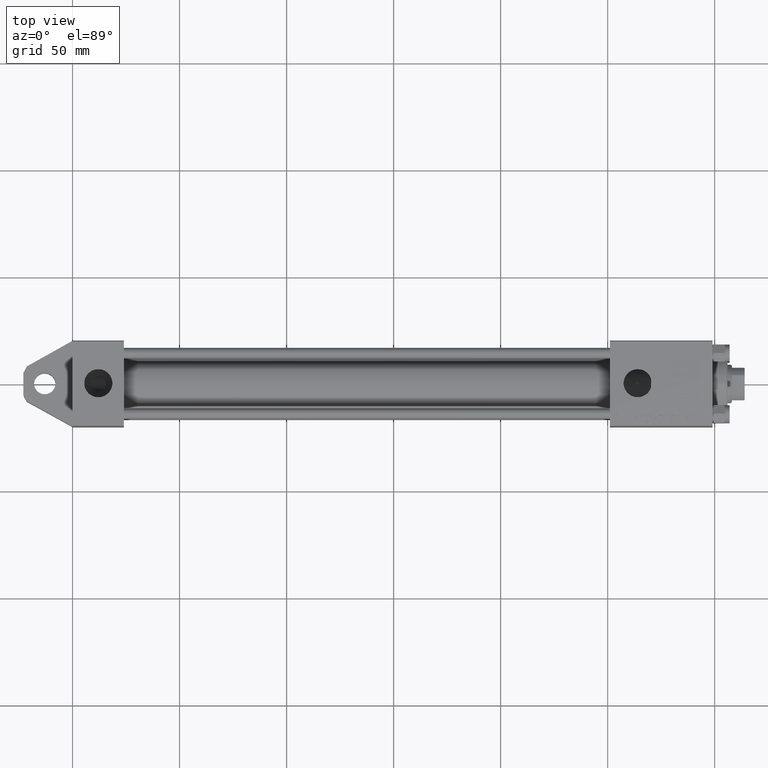
[diagram: clean part render]
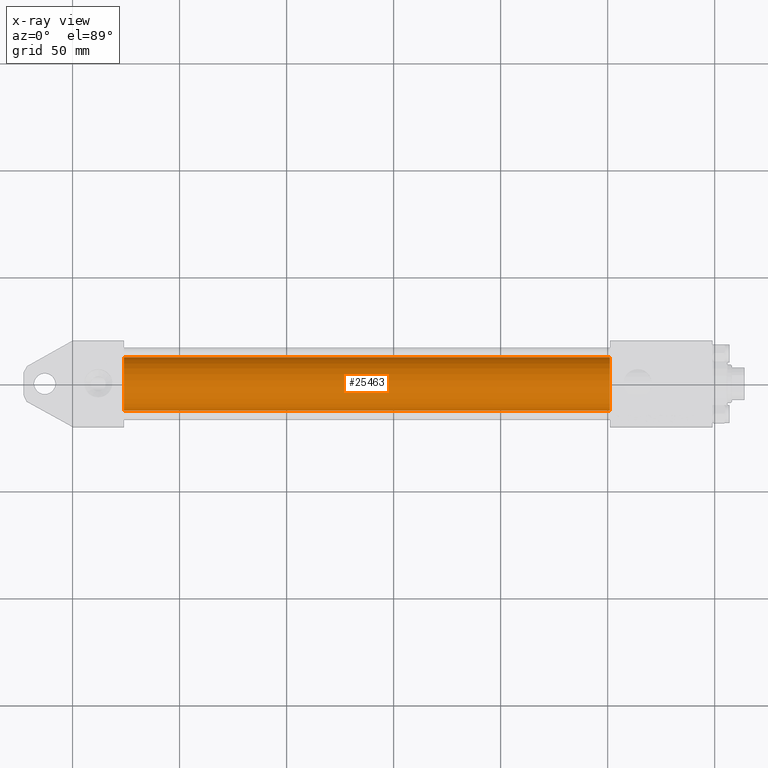
[diagram: x-ray — body ghosted, one internal face saturated and labeled with its STEP entity id]
A machine part, top view, then the same camera in x-ray: the body is ghosted and one INTERNAL B-rep face — a face not visible from any outside direction — is saturated and labeled: STEP entity #25463.
In plain terms, the highlighted cylindrical surface (edge-blend (fillet) strip) has radius 12.5 mm, axis along (-1, -0, 0).
Its self-contained STEP definition (entity closure, byte-faithful):
#334 = ORIENTED_EDGE ( 'NONE', *, *, #23275, .F. ) ;
#985 = VECTOR ( 'NONE', #36965, 1000.000000000000000 ) ;
#2325 = ORIENTED_EDGE ( 'NONE', *, *, #27669, .F. ) ;
#4249 = AXIS2_PLACEMENT_3D ( 'NONE', #28841, #18256, #5769 ) ;
#5262 = CARTESIAN_POINT ( 'NONE',  ( 24.00000000000000000, -3.469446951953614189E-15, 0.000000000000000000 ) ) ;
#5769 = DIRECTION ( 'NONE',  ( 0.000000000000000000, 0.000000000000000000, 1.000000000000000000 ) ) ;
#6728 = CYLINDRICAL_SURFACE ( 'NONE', #4249, 12.49999999999999645 ) ;
#8250 = DIRECTION ( 'NONE',  ( -1.000000000000000000, -0.000000000000000000, -0.000000000000000000 ) ) ;
#9006 = DIRECTION ( 'NONE',  ( 1.000000000000000000, 0.000000000000000000, 0.000000000000000000 ) ) ;
#9951 = EDGE_CURVE ( 'NONE', #17559, #40968, #35130, .T. ) ;
#11210 = EDGE_LOOP ( 'NONE', ( #25192, #28912, #2325, #334 ) ) ;
#14434 = VECTOR ( 'NONE', #8250, 1000.000000000000000 ) ;
#17559 = VERTEX_POINT ( 'NONE', #49349 ) ;
#18256 = DIRECTION ( 'NONE',  ( -1.000000000000000000, -0.000000000000000000, -0.000000000000000000 ) ) ;
#18649 = DIRECTION ( 'NONE',  ( 0.000000000000000000, 0.000000000000000000, -1.000000000000000000 ) ) ;
#19511 = CIRCLE ( 'NONE', #32365, 12.49999999999999645 ) ;
#23275 = EDGE_CURVE ( 'NONE', #17559, #31475, #43750, .T. ) ;
#25192 = ORIENTED_EDGE ( 'NONE', *, *, #9951, .T. ) ;
#25463 = ADVANCED_FACE ( 'NONE', ( #37359 ), #6728, .F. ) ;
#26437 = CARTESIAN_POINT ( 'NONE',  ( 251.0000000000000000, -3.469446951953614189E-15, 0.000000000000000000 ) ) ;
#27669 = EDGE_CURVE ( 'NONE', #31475, #47055, #19511, .T. ) ;
#27842 = DIRECTION ( 'NONE',  ( 0.000000000000000000, 0.000000000000000000, -1.000000000000000000 ) ) ;
#28841 = CARTESIAN_POINT ( 'NONE',  ( 251.0000000000000000, -3.469446951953614189E-15, 0.000000000000000000 ) ) ;
#28912 = ORIENTED_EDGE ( 'NONE', *, *, #45764, .T. ) ;
#31475 = VERTEX_POINT ( 'NONE', #38375 ) ;
#32365 = AXIS2_PLACEMENT_3D ( 'NONE', #5262, #9006, #27842 ) ;
#32704 = CARTESIAN_POINT ( 'NONE',  ( 251.0000000000000000, -3.469446951953614189E-15, 12.49999999999999645 ) ) ;
#35130 = CIRCLE ( 'NONE', #46331, 12.49999999999999645 ) ;
#36965 = DIRECTION ( 'NONE',  ( -1.000000000000000000, -0.000000000000000000, -0.000000000000000000 ) ) ;
#37359 = FACE_OUTER_BOUND ( 'NONE', #11210, .T. ) ;
#38375 = CARTESIAN_POINT ( 'NONE',  ( 24.00000000000000000, -3.469446951953614189E-15, 12.49999999999999645 ) ) ;
#38633 = LINE ( 'NONE', #47412, #14434 ) ;
#38740 = DIRECTION ( 'NONE',  ( 1.000000000000000000, 0.000000000000000000, 0.000000000000000000 ) ) ;
#40968 = VERTEX_POINT ( 'NONE', #42464 ) ;
#42464 = CARTESIAN_POINT ( 'NONE',  ( 251.0000000000000000, -1.938638453019423259E-15, -12.49999999999999645 ) ) ;
#43750 = LINE ( 'NONE', #32704, #985 ) ;
#44224 = CARTESIAN_POINT ( 'NONE',  ( 24.00000000000000000, -1.938638453019423259E-15, -12.49999999999999645 ) ) ;
#45764 = EDGE_CURVE ( 'NONE', #40968, #47055, #38633, .T. ) ;
#46331 = AXIS2_PLACEMENT_3D ( 'NONE', #26437, #38740, #18649 ) ;
#47055 = VERTEX_POINT ( 'NONE', #44224 ) ;
#47412 = CARTESIAN_POINT ( 'NONE',  ( 251.0000000000000000, -1.938638453019423259E-15, -12.49999999999999645 ) ) ;
#49349 = CARTESIAN_POINT ( 'NONE',  ( 251.0000000000000000, -3.469446951953614189E-15, 12.49999999999999645 ) ) ;